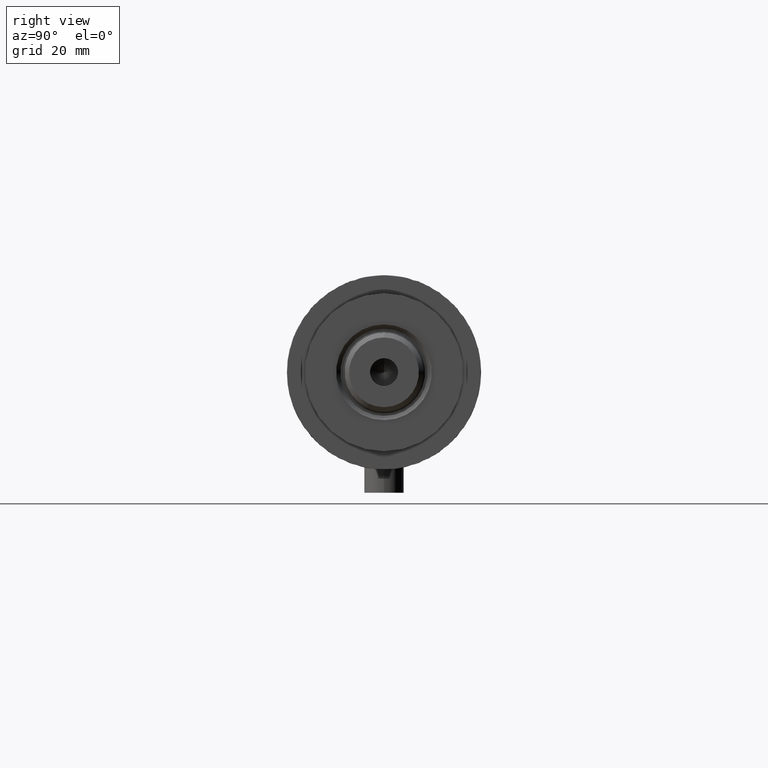
[diagram: clean part render]
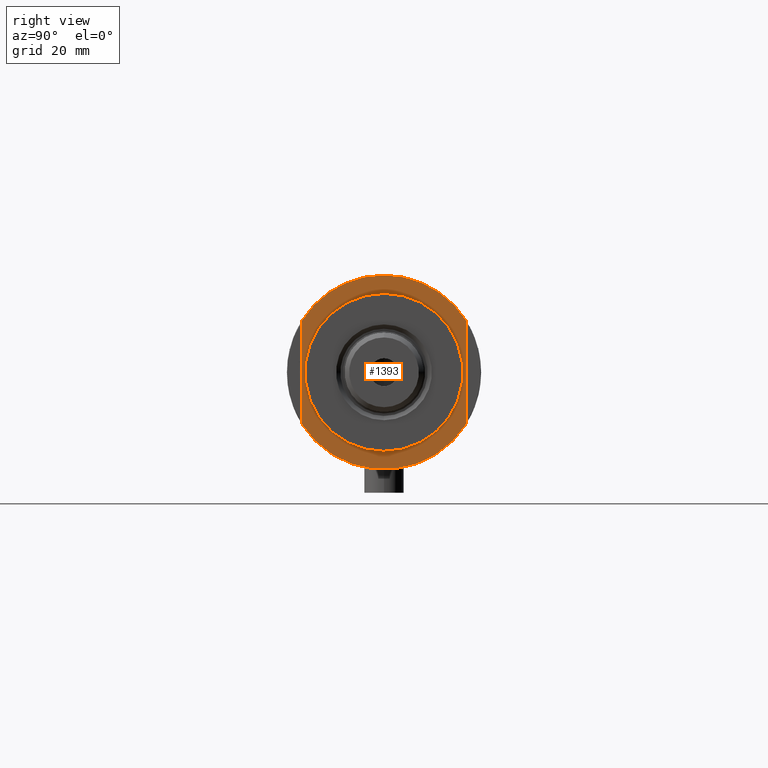
[diagram: same view with one face highlighted and labeled with its STEP entity id]
A machine part, right view. The second image highlights one B-rep face of the part: STEP entity #1393.
In plain terms, the highlighted planar face has unit normal (1, 0, -0).
Its self-contained STEP definition (entity closure, byte-faithful):
#94 = DIRECTION ( 'NONE',  ( 0.000000000000000000, 0.000000000000000000, 1.000000000000000000 ) ) ;
#296 = CARTESIAN_POINT ( 'NONE',  ( 15.66045976336583045, 25.00000000000000000, 15.50000000000000000 ) ) ;
#311 = EDGE_LOOP ( 'NONE', ( #3039, #1477 ) ) ;
#413 = DIRECTION ( 'NONE',  ( -0.000000000000000000, -0.000000000000000000, -1.000000000000000000 ) ) ;
#446 = CARTESIAN_POINT ( 'NONE',  ( 0.000000000000000000, 0.000000000000000000, 15.50000000000000000 ) ) ;
#513 = DIRECTION ( 'NONE',  ( -0.000000000000000000, -0.000000000000000000, -1.000000000000000000 ) ) ;
#523 = ORIENTED_EDGE ( 'NONE', *, *, #4349, .T. ) ;
#675 = AXIS2_PLACEMENT_3D ( 'NONE', #1314, #513, #1332 ) ;
#756 = VERTEX_POINT ( 'NONE', #4562 ) ;
#823 = CARTESIAN_POINT ( 'NONE',  ( 0.000000000000000000, 0.000000000000000000, 15.50000000000000000 ) ) ;
#1198 = VECTOR ( 'NONE', #3524, 1000.000000000000000 ) ;
#1280 = AXIS2_PLACEMENT_3D ( 'NONE', #823, #94, #2320 ) ;
#1314 = CARTESIAN_POINT ( 'NONE',  ( 0.000000000000000000, 0.000000000000000000, 15.50000000000000000 ) ) ;
#1332 = DIRECTION ( 'NONE',  ( 1.000000000000000000, 0.000000000000000000, 0.000000000000000000 ) ) ;
#1393 = ADVANCED_FACE ( 'NONE', ( #4555, #2393 ), #4602, .T. ) ;
#1405 = VERTEX_POINT ( 'NONE', #2750 ) ;
#1443 = EDGE_CURVE ( 'NONE', #4430, #2789, #2506, .T. ) ;
#1447 = AXIS2_PLACEMENT_3D ( 'NONE', #2660, #413, #4154 ) ;
#1477 = ORIENTED_EDGE ( 'NONE', *, *, #2608, .T. ) ;
#1488 = CARTESIAN_POINT ( 'NONE',  ( 0.000000000000000000, 0.000000000000000000, 15.50000000000000000 ) ) ;
#1529 = CIRCLE ( 'NONE', #675, 24.00000000000000000 ) ;
#1714 = DIRECTION ( 'NONE',  ( 1.000000000000000000, 0.000000000000000000, 0.000000000000000000 ) ) ;
#1847 = VECTOR ( 'NONE', #3984, 1000.000000000000000 ) ;
#2052 = LINE ( 'NONE', #3237, #1847 ) ;
#2055 = VERTEX_POINT ( 'NONE', #4695 ) ;
#2124 = EDGE_LOOP ( 'NONE', ( #3209, #4574, #3568, #523, #3985 ) ) ;
#2228 = AXIS2_PLACEMENT_3D ( 'NONE', #446, #4155, #2271 ) ;
#2271 = DIRECTION ( 'NONE',  ( 1.000000000000000000, 0.000000000000000000, 0.000000000000000000 ) ) ;
#2313 = CIRCLE ( 'NONE', #3779, 29.50000000000000355 ) ;
#2320 = DIRECTION ( 'NONE',  ( 1.000000000000000000, 0.000000000000000000, -0.000000000000000000 ) ) ;
#2393 = FACE_OUTER_BOUND ( 'NONE', #2124, .T. ) ;
#2459 = AXIS2_PLACEMENT_3D ( 'NONE', #1488, #3937, #2573 ) ;
#2496 = CARTESIAN_POINT ( 'NONE',  ( 0.000000000000000000, 0.000000000000000000, 15.50000000000000000 ) ) ;
#2506 = LINE ( 'NONE', #3891, #1198 ) ;
#2573 = DIRECTION ( 'NONE',  ( 1.000000000000000000, 0.000000000000000000, 0.000000000000000000 ) ) ;
#2608 = EDGE_CURVE ( 'NONE', #1405, #2774, #3548, .T. ) ;
#2615 = CARTESIAN_POINT ( 'NONE',  ( -15.66045976336583045, 25.00000000000000000, 15.50000000000000000 ) ) ;
#2660 = CARTESIAN_POINT ( 'NONE',  ( 0.000000000000000000, 0.000000000000000000, 15.50000000000000000 ) ) ;
#2750 = CARTESIAN_POINT ( 'NONE',  ( -24.00000000000000000, 2.939152317953647894E-15, 15.50000000000000000 ) ) ;
#2774 = VERTEX_POINT ( 'NONE', #4390 ) ;
#2789 = VERTEX_POINT ( 'NONE', #296 ) ;
#3039 = ORIENTED_EDGE ( 'NONE', *, *, #3130, .T. ) ;
#3100 = VERTEX_POINT ( 'NONE', #4198 ) ;
#3130 = EDGE_CURVE ( 'NONE', #2774, #1405, #1529, .T. ) ;
#3167 = CIRCLE ( 'NONE', #2228, 29.50000000000000355 ) ;
#3193 = EDGE_CURVE ( 'NONE', #2055, #3100, #2052, .T. ) ;
#3209 = ORIENTED_EDGE ( 'NONE', *, *, #3193, .F. ) ;
#3237 = CARTESIAN_POINT ( 'NONE',  ( -15.66045976336583401, -25.00000000000000000, 15.50000000000000000 ) ) ;
#3524 = DIRECTION ( 'NONE',  ( 1.000000000000000000, 0.000000000000000000, 0.000000000000000000 ) ) ;
#3548 = CIRCLE ( 'NONE', #1447, 24.00000000000000000 ) ;
#3568 = ORIENTED_EDGE ( 'NONE', *, *, #1443, .F. ) ;
#3672 = EDGE_CURVE ( 'NONE', #756, #3100, #4530, .T. ) ;
#3779 = AXIS2_PLACEMENT_3D ( 'NONE', #2496, #3970, #1714 ) ;
#3891 = CARTESIAN_POINT ( 'NONE',  ( -15.66045976336583401, 25.00000000000000000, 15.50000000000000000 ) ) ;
#3937 = DIRECTION ( 'NONE',  ( 0.000000000000000000, 0.000000000000000000, 1.000000000000000000 ) ) ;
#3970 = DIRECTION ( 'NONE',  ( 0.000000000000000000, 0.000000000000000000, 1.000000000000000000 ) ) ;
#3984 = DIRECTION ( 'NONE',  ( -1.000000000000000000, -0.000000000000000000, -0.000000000000000000 ) ) ;
#3985 = ORIENTED_EDGE ( 'NONE', *, *, #3672, .T. ) ;
#4154 = DIRECTION ( 'NONE',  ( 1.000000000000000000, 0.000000000000000000, 0.000000000000000000 ) ) ;
#4155 = DIRECTION ( 'NONE',  ( 0.000000000000000000, 0.000000000000000000, 1.000000000000000000 ) ) ;
#4198 = CARTESIAN_POINT ( 'NONE',  ( -15.66045976336583045, -25.00000000000000000, 15.50000000000000000 ) ) ;
#4349 = EDGE_CURVE ( 'NONE', #4430, #756, #2313, .T. ) ;
#4390 = CARTESIAN_POINT ( 'NONE',  ( 24.00000000000000000, 0.000000000000000000, 15.50000000000000000 ) ) ;
#4430 = VERTEX_POINT ( 'NONE', #2615 ) ;
#4530 = CIRCLE ( 'NONE', #2459, 29.50000000000000355 ) ;
#4555 = FACE_BOUND ( 'NONE', #311, .T. ) ;
#4562 = CARTESIAN_POINT ( 'NONE',  ( -29.50000000000000355, 0.000000000000000000, 15.50000000000000000 ) ) ;
#4574 = ORIENTED_EDGE ( 'NONE', *, *, #4652, .T. ) ;
#4602 = PLANE ( 'NONE',  #1280 ) ;
#4652 = EDGE_CURVE ( 'NONE', #2055, #2789, #3167, .T. ) ;
#4695 = CARTESIAN_POINT ( 'NONE',  ( 15.66045976336583045, -25.00000000000000000, 15.50000000000000000 ) ) ;